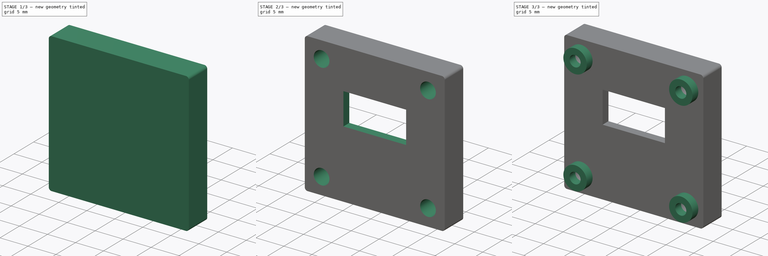
[diagram: build sequence overview — one tinted view per stage of 3, left to right]
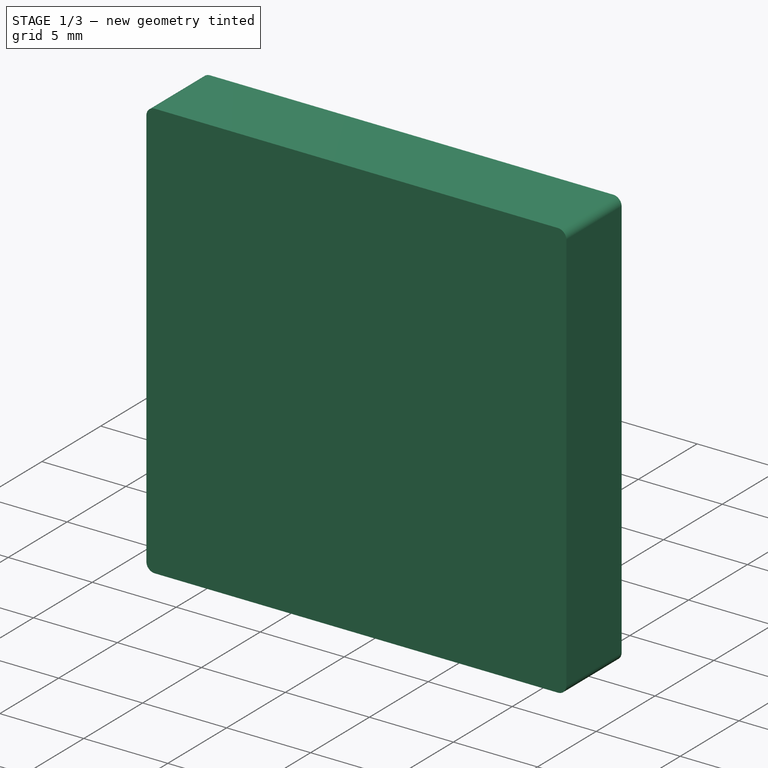
[diagram: stage 1 of 3 — iso view after this stage's code; geometry added in this stage tinted green]
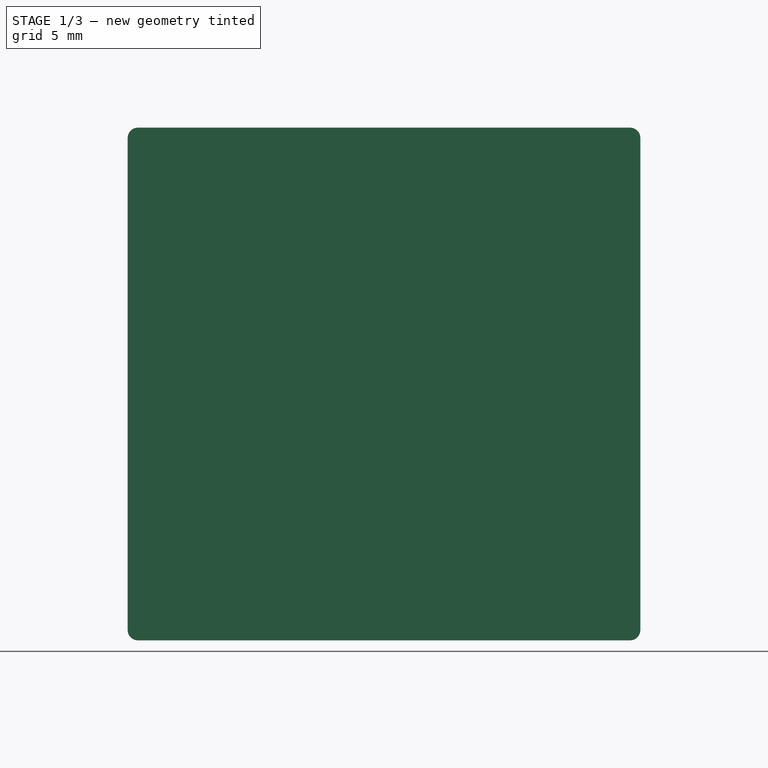
[diagram: stage 1 of 3 — front view after this stage's code; geometry added in this stage tinted green]
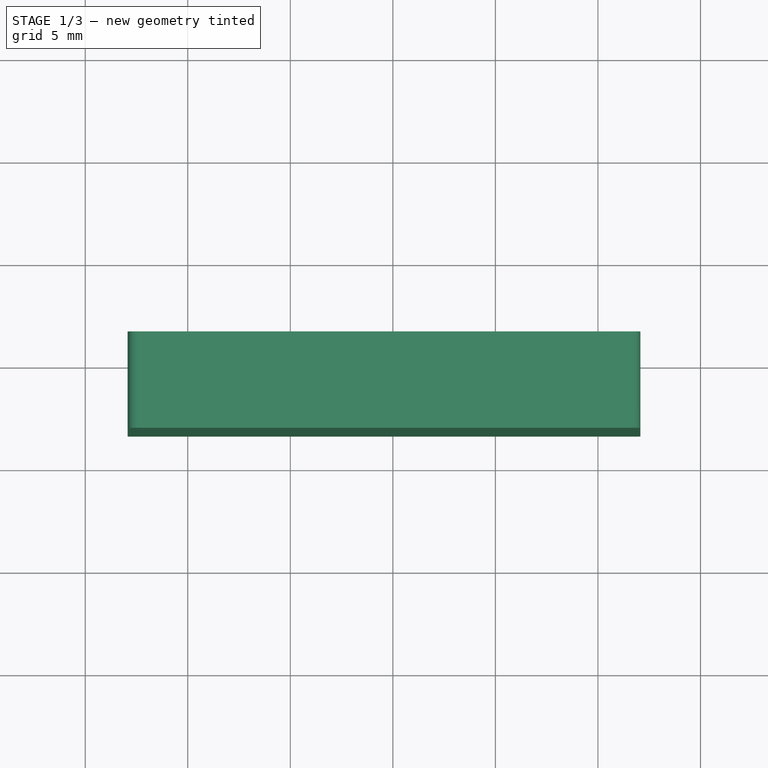
[diagram: stage 1 of 3 — top view after this stage's code; geometry added in this stage tinted green]
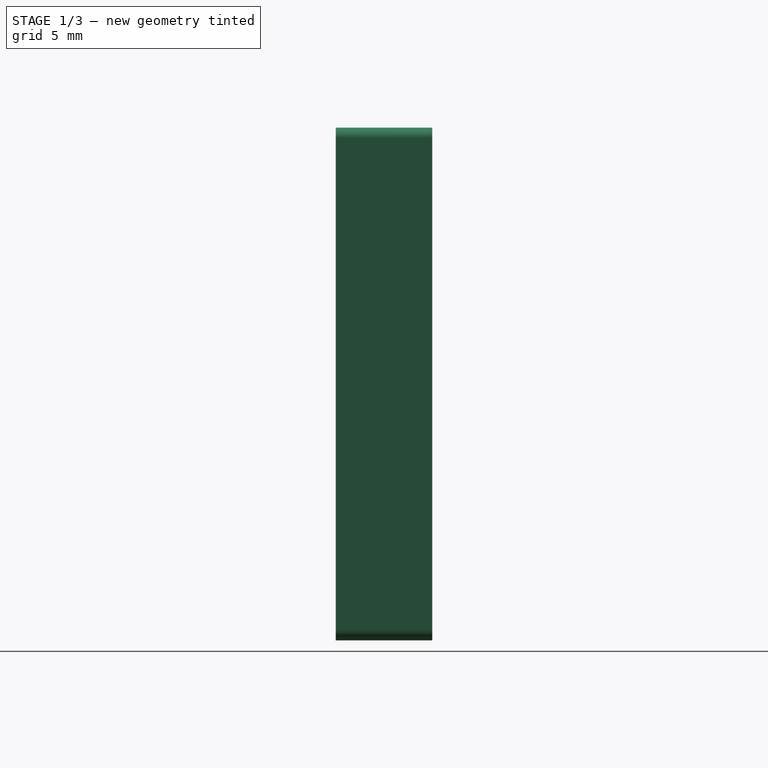
[diagram: stage 1 of 3 — right view after this stage's code; geometry added in this stage tinted green]
FCSTD DOCUMENT  (FreeCAD 1.0R39285 (Git))
Label: module_holder
License: All rights reserved
LicenseURL: https://en.wikipedia.org/wiki/All_rights_reserved
objects: Sketcher::SketchObject×6, PartDesign::Pad×3, PartDesign::Pocket×3, Part::Feature×2, PartDesign::Body×2, App::Part×1, PartDesign::SubShapeBinder×1, PartDesign::FeatureBase×1
note: 37 computed .brp shape members not serialized (recipe doc carries the construction recipe); baked Part::Feature solids carry a one-line shape summary decoded from their .brp

FEATURE [Part::Feature] Part__Feature  label="mod"
  Placement = pos=(-0.431792,-1.84981,21) rot=(0,0,1;0rad)
  shape: bbox 21 x 6.2 x 21 mm, 29 faces (baked)
FEATURE [Part::Feature] Part__Feature001  label="CP-6852 PCB"
  Placement = pos=(-0.431792,3.25019,21) rot=(0,0,1;0rad)
  shape: bbox 17.4 x 6.3 x 17.4 mm, 20 faces (baked)
FEATURE [App::Part] CP_6852_______  label="ZW-101"
  Group = -> [Part__Feature,Part__Feature001]
  Origin = -> Origin
FEATURE [PartDesign::SubShapeBinder] Binder
  BindCopyOnChange = 0
  BindMode = 0
  ClaimChildren = false
  Context = -> Body [Binder.]
  Fuse = false
  MakeFace = true
  OffsetFill = false
  OffsetIntersection = false
  OffsetJoinType = 0
  OffsetOpenResult = false
  PartialLoad = false
  Relative = true
  Support = -> [CP_6852_______]
  _Version = 2
FEATURE [Sketcher::SketchObject] Sketch
  ArcFitTolerance = 1e-06
  AttachmentSupport = -> [Binder]
  ExternalGeometry = -> [Binder]
  FullyConstrained = true
  MakeInternals = false
  MapMode = 5
  Placement = pos=(0,-1.84981,0) rot=(1,0,0;1.5708rad)
  sketch-geometry (13):
    g0: LineSegment StartX=12.0682 StartY=9 StartZ=0 EndX=12.0682 EndY=33 EndZ=0
    g1: LineSegment StartX=11.5682 StartY=33.5 StartZ=0 EndX=-12.4318 EndY=33.5 EndZ=0
    g2: LineSegment StartX=-12.9318 StartY=33 StartZ=0 EndX=-12.9318 EndY=9 EndZ=0
    g3: LineSegment StartX=-12.4318 StartY=8.5 StartZ=0 EndX=11.5682 EndY=8.5 EndZ=0
    g4: GeomPoint [constr] X=-0.431792 Y=21 Z=0
    g5: ArcOfCircle CenterX=-12.4318 CenterY=33 CenterZ=0 NormalX=0 NormalY=0 NormalZ=1 AngleXU=0 Radius=0.5 StartAngle=1.5708 EndAngle=3.14159
    g6: GeomPoint [constr] X=-12.9318 Y=33.5 Z=0
    g7: ArcOfCircle CenterX=-12.4318 CenterY=9 CenterZ=0 NormalX=0 NormalY=0 NormalZ=1 AngleXU=0 Radius=0.5 StartAngle=3.14159 EndAngle=4.71239
    g8: GeomPoint [constr] X=-12.9318 Y=8.5 Z=0
    g9: ArcOfCircle CenterX=11.5682 CenterY=9 CenterZ=0 NormalX=0 NormalY=0 NormalZ=1 AngleXU=0 Radius=0.5 StartAngle=4.71239 EndAngle=6.28319
    g10: GeomPoint [constr] X=12.0682 Y=8.5 Z=0
    g11: ArcOfCircle CenterX=11.5682 CenterY=33 CenterZ=0 NormalX=0 NormalY=0 NormalZ=1 AngleXU=0 Radius=0.5 StartAngle=2.3e-15 EndAngle=1.5708
    g12: GeomPoint [constr] X=12.0682 Y=33.5 Z=0
  constraints (28):
    c: Vertical(g0)
    c: Vertical(g2)
    c: Horizontal(g1)
    c: Horizontal(g3)
    c: Symmetric(g6,g10,g4)
    c: Coincident(g4,g-4)
    c: DistanceX(g6,g12) = 25
    c: PointOnObject(g6,g1)
    c: PointOnObject(g6,g2)
    c: Tangent(g1,g5) = -1.5708
    c: Tangent(g2,g5) = -1.5708
    c: PointOnObject(g8,g2)
    c: PointOnObject(g8,g3)
    c: Tangent(g2,g7) = -1.5708
    c: Tangent(g3,g7) = -1.5708
    c: PointOnObject(g10,g3)
    c: PointOnObject(g10,g0)
    c: Tangent(g3,g9) = -1.5708
    c: Tangent(g0,g9) = -1.5708
    c: PointOnObject(g12,g0)
    c: PointOnObject(g12,g1)
    c: Tangent(g0,g11) = -1.5708
    c: Tangent(g1,g11) = -1.5708
    c: Equal(g11,g9)
    c: Equal(g9,g7)
    c: Equal(g7,g5)
    c: Radius(g5) = 0.5
    c: DistanceY(g3,g1) = 25
FEATURE [PartDesign::Pad] Pad
  Direction = (0,-1,2e-16)
  Length = 1.5
  Length2 = 10
  Profile = -> Sketch
  ReferenceAxis = -> Sketch [N_Axis]
  Suppressed = false
  Type = 0
FEATURE [Sketcher::SketchObject] Sketch001
  ArcFitTolerance = 1e-06
  AttachmentSupport = -> [Pad]
  ExternalGeometry = -> [Binder,Pad]
  FullyConstrained = true
  MakeInternals = false
  MapMode = 5
  Placement = pos=(0,-1.84981,0) rot=(0,0.707107,0.707107;3.14159rad)
  sketch-geometry (19):
    g0: ArcOfCircle CenterX=0.431792 CenterY=11.54 CenterZ=0 NormalX=0 NormalY=0 NormalZ=1 AngleXU=0 Radius=1.04 StartAngle=3.0866 EndAngle=6.33818
    g1: ArcOfCircle CenterX=0.431792 CenterY=21 CenterZ=0 NormalX=0 NormalY=0 NormalZ=1 AngleXU=0 Radius=9.46 StartAngle=4.82238 EndAngle=6.95859
    g2: ArcOfCircle CenterX=7.12102 CenterY=27.6892 CenterZ=0 NormalX=0 NormalY=0 NormalZ=1 AngleXU=0 Radius=1.04 StartAngle=5.44279 EndAngle=8.69438
    g3: ArcOfCircle CenterX=0.431792 CenterY=21 CenterZ=0 NormalX=0 NormalY=0 NormalZ=1 AngleXU=0 Radius=9.46 StartAngle=0.89539 EndAngle=2.2462
    g4: ArcOfCircle CenterX=-6.25744 CenterY=27.6892 CenterZ=0 NormalX=0 NormalY=0 NormalZ=1 AngleXU=0 Radius=1.04 StartAngle=0.730402 EndAngle=3.98199
    g5: ArcOfCircle CenterX=0.431792 CenterY=21 CenterZ=0 NormalX=0 NormalY=0 NormalZ=1 AngleXU=0 Radius=9.46 StartAngle=2.46619 EndAngle=4.6024
    g6: LineSegment StartX=12.9318 StartY=9 StartZ=0 EndX=12.9318 EndY=33 EndZ=0
    g7: LineSegment StartX=12.4318 StartY=33.5 StartZ=0 EndX=-11.5682 EndY=33.5 EndZ=0
    g8: LineSegment StartX=-12.0682 StartY=33 StartZ=0 EndX=-12.0682 EndY=9 EndZ=0
    g9: LineSegment StartX=-11.5682 StartY=8.5 StartZ=0 EndX=12.4318 EndY=8.5 EndZ=0
    g10: GeomPoint [constr] X=0.431792 Y=21 Z=0
    g11: ArcOfCircle CenterX=-11.5682 CenterY=33 CenterZ=0 NormalX=0 NormalY=0 NormalZ=1 AngleXU=0 Radius=0.5 StartAngle=1.5708 EndAngle=3.14159
    g12: GeomPoint [constr] X=-12.0682 Y=33.5 Z=0
    g13: ArcOfCircle CenterX=12.4318 CenterY=33 CenterZ=0 NormalX=0 NormalY=0 NormalZ=1 AngleXU=0 Radius=0.5 StartAngle=-1.954e-13 EndAngle=1.5708
    g14: GeomPoint [constr] X=12.9318 Y=33.5 Z=0
    g15: ArcOfCircle CenterX=12.4318 CenterY=9 CenterZ=0 NormalX=0 NormalY=0 NormalZ=1 AngleXU=0 Radius=0.5 StartAngle=4.71239 EndAngle=6.28319
    g16: GeomPoint [constr] X=12.9318 Y=8.5 Z=0
    g17: ArcOfCircle CenterX=-11.5682 CenterY=9 CenterZ=0 NormalX=0 NormalY=0 NormalZ=1 AngleXU=0 Radius=0.5 StartAngle=3.14159 EndAngle=4.71239
    g18: GeomPoint [constr] X=-12.0682 Y=8.5 Z=0
  constraints (45):
    c: Coincident(g0,g-4)
    c: Coincident(g0,g-5)
    c: Horizontal(g0,g0)
    c: Coincident(g2,g-11)
    c: Coincident(g2,g1)
    c: Coincident(g2,g-11)
    c: Coincident(g3,g1)
    c: Coincident(g3,g-11)
    c: Coincident(g3,g-8)
    c: Coincident(g4,g-7)
    c: Coincident(g4,g-8)
    c: Coincident(g5,g1)
    c: Coincident(g5,g4)
    c: Coincident(g5,g0)
    c: PointOnObject(g1,g-3)
    c: Vertical(g1,g0)
    c: PointOnObject(g1,g-3)
    c: Vertical(g6)
    c: Vertical(g8)
    c: Horizontal(g7)
    c: Horizontal(g9)
    c: Symmetric(g12,g16,g10)
    c: Coincident(g10,g1)
    c: Horizontal(g12,g-12)
    c: Vertical(g-13,g12)
    c: PointOnObject(g12,g7)
    c: PointOnObject(g12,g8)
    c: Tangent(g7,g11) = -1.5708
    c: Tangent(g8,g11) = -1.5708
    c: PointOnObject(g14,g7)
    c: PointOnObject(g14,g6)
    c: Tangent(g7,g13) = -1.5708
    c: Tangent(g6,g13) = -1.5708
    c: PointOnObject(g16,g9)
    c: PointOnObject(g16,g6)
    c: Tangent(g9,g15) = -1.5708
    c: Tangent(g6,g15) = -1.5708
    c: PointOnObject(g18,g9)
    c: PointOnObject(g18,g8)
    c: Tangent(g9,g17) = -1.5708
    c: Tangent(g8,g17) = -1.5708
    c: Equal(g17,g15)
    c: Equal(g15,g13)
    c: Equal(g13,g11)
    c: Radius(g11) = 0.5
FEATURE [PartDesign::Pad] Pad001
  BaseFeature = -> Pad
  Direction = (0,1,-2e-16)
  Length = 10
  Length2 = 10
  Profile = -> Sketch001
  ReferenceAxis = -> Sketch001 [N_Axis]
  Suppressed = false
  Type = 3
  UpToFace = -> Binder [Face22]
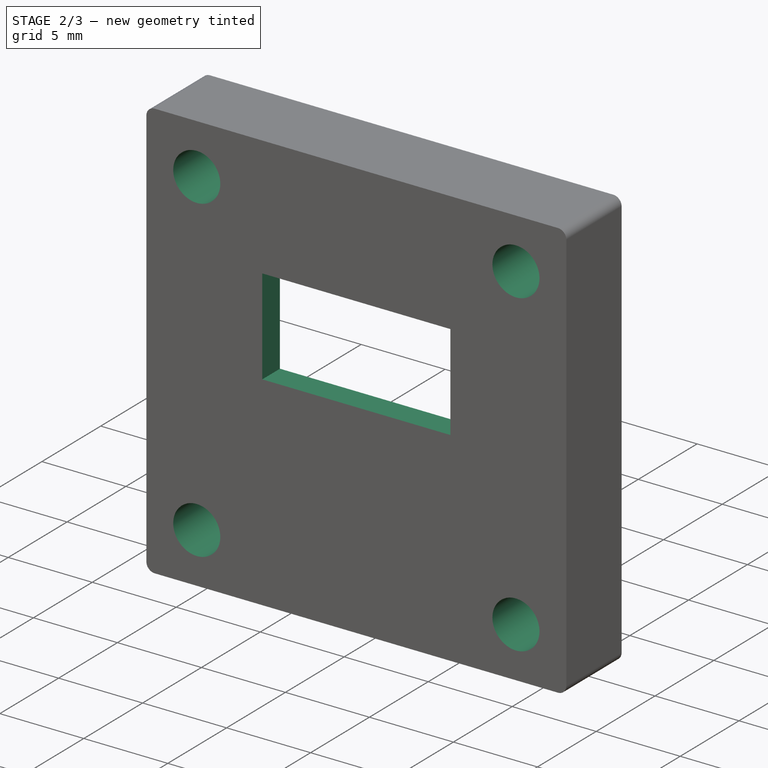
[diagram: stage 2 of 3 — iso view after this stage's code; geometry added in this stage tinted green]
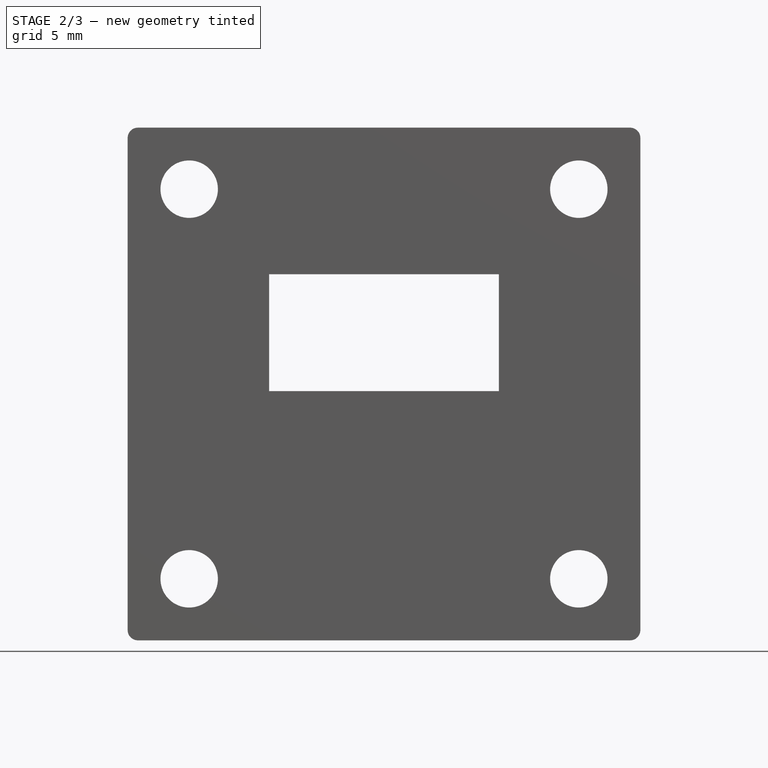
[diagram: stage 2 of 3 — front view after this stage's code; geometry added in this stage tinted green]
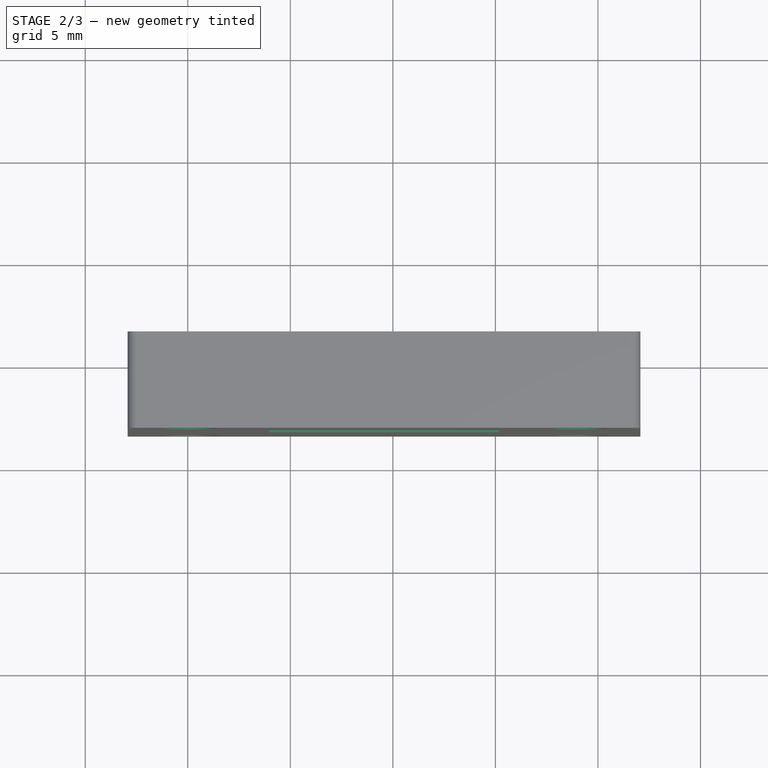
[diagram: stage 2 of 3 — top view after this stage's code; geometry added in this stage tinted green]
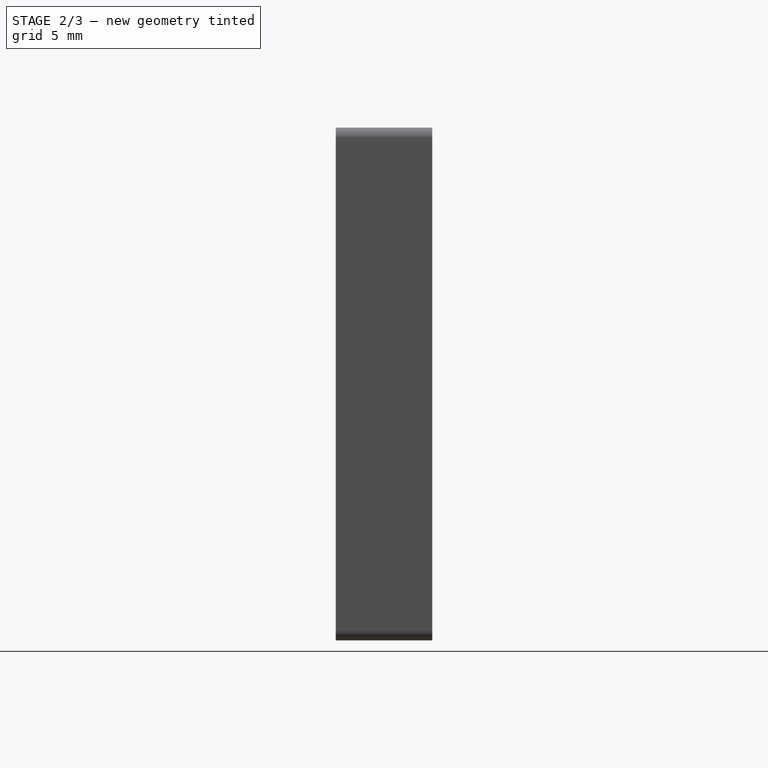
[diagram: stage 2 of 3 — right view after this stage's code; geometry added in this stage tinted green]
FEATURE [Sketcher::SketchObject] Sketch003
  ArcFitTolerance = 1e-06
  AttachmentSupport = -> [Pad001]
  ExternalGeometry = -> [Binder]
  FullyConstrained = true
  MakeInternals = false
  MapMode = 5
  Placement = pos=(0,1.35019,0) rot=(0,0.707107,0.707107;3.14159rad)
  sketch-geometry (4):
    g0: Circle CenterX=9.93179 CenterY=11.5 CenterZ=0 NormalX=0 NormalY=0 NormalZ=1 AngleXU=0 Radius=1.4
    g1: Circle CenterX=-9.06821 CenterY=30.5 CenterZ=0 NormalX=0 NormalY=0 NormalZ=1 AngleXU=0 Radius=1.4
    g2: Circle CenterX=9.93179 CenterY=30.5 CenterZ=0 NormalX=0 NormalY=0 NormalZ=1 AngleXU=0 Radius=1.4
    g3: Circle CenterX=-9.06821 CenterY=11.5 CenterZ=0 NormalX=0 NormalY=0 NormalZ=1 AngleXU=0 Radius=1.4
  constraints (10):
    c: Symmetric(g1,g0,g-7)
    c: Equal(g1,g0)
    c: Radius(g1) = 1.4
    c: DistanceX(g-4,g1) = 3
    c: DistanceY(g1,g-4) = 3
    c: Equal(g3,g2)
    c: Equal(g2,g1)
    c: Vertical(g3,g1)
    c: Horizontal(g3,g0)
    c: Symmetric(g3,g2,g-7)
FEATURE [Sketcher::SketchObject] Sketch004
  ArcFitTolerance = 1e-06
  AttachmentSupport = -> [Pad001]
  ExternalGeometry = -> [Binder]
  FullyConstrained = true
  MakeInternals = false
  MapMode = 5
  Placement = pos=(0,-3.34981,0) rot=(1,0,0;1.5708rad)
  sketch-geometry (6):
    g0: GeomPoint X=-0.431792 Y=23.5 Z=0
    g1: LineSegment StartX=5.16821 StartY=20.65 StartZ=0 EndX=5.16821 EndY=26.35 EndZ=0
    g2: LineSegment StartX=5.16821 StartY=26.35 StartZ=0 EndX=-6.03179 EndY=26.35 EndZ=0
    g3: LineSegment StartX=-6.03179 StartY=26.35 StartZ=0 EndX=-6.03179 EndY=20.65 EndZ=0
    g4: LineSegment StartX=-6.03179 StartY=20.65 StartZ=0 EndX=5.16821 EndY=20.65 EndZ=0
    g5: GeomPoint [constr] X=-0.431792 Y=23.5 Z=0
  constraints (13):
    c: Symmetric(g-5,g-3,g0)
    c: Coincident(g1,g2)
    c: Coincident(g2,g3)
    c: Coincident(g3,g4)
    c: Coincident(g4,g1)
    c: Vertical(g1)
    c: Vertical(g3)
    c: Horizontal(g2)
    c: Horizontal(g4)
    c: Symmetric(g3,g1,g5)
    c: Coincident(g5,g0)
    c: DistanceX(g2,g-4) = 0.6
    c: Horizontal(g-5,g1)
FEATURE [PartDesign::Pocket] Pocket001
  BaseFeature = -> Pad001
  Direction = (0,1,-2e-16)
  Length = 5
  Length2 = 5
  Profile = -> Sketch004
  ReferenceAxis = -> Sketch004 [N_Axis]
  Suppressed = false
  Type = 1
FEATURE [PartDesign::Pocket] Pocket
  BaseFeature = -> Pocket001
  Direction = (0,-1,2e-16)
  Length = 5
  Length2 = 5
  Profile = -> Sketch003
  ReferenceAxis = -> Sketch003 [N_Axis]
  Suppressed = false
  Type = 1
FEATURE [PartDesign::Body] Body  label="Holder"
  AllowCompound = false
  Group = -> [Binder,Sketch,Pad,Sketch001,Pad001,Sketch003,Sketch004,Pocket001,Pocket]
  Origin = -> Origin001
  Tip = -> Pocket
FEATURE [PartDesign::FeatureBase] Clone
  BaseFeature = -> Body
  Suppressed = false
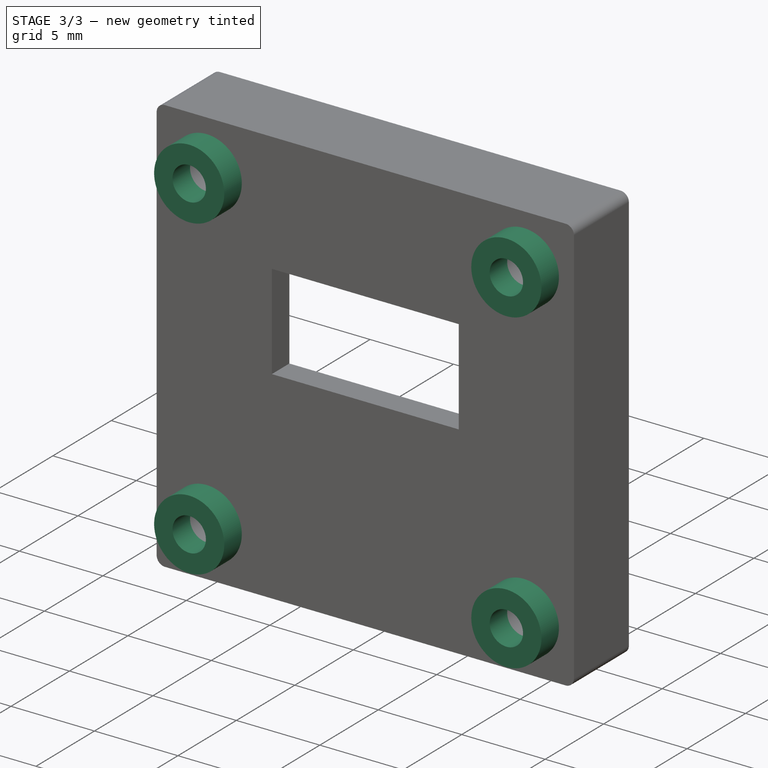
[diagram: stage 3 of 3 — iso view after this stage's code; geometry added in this stage tinted green]
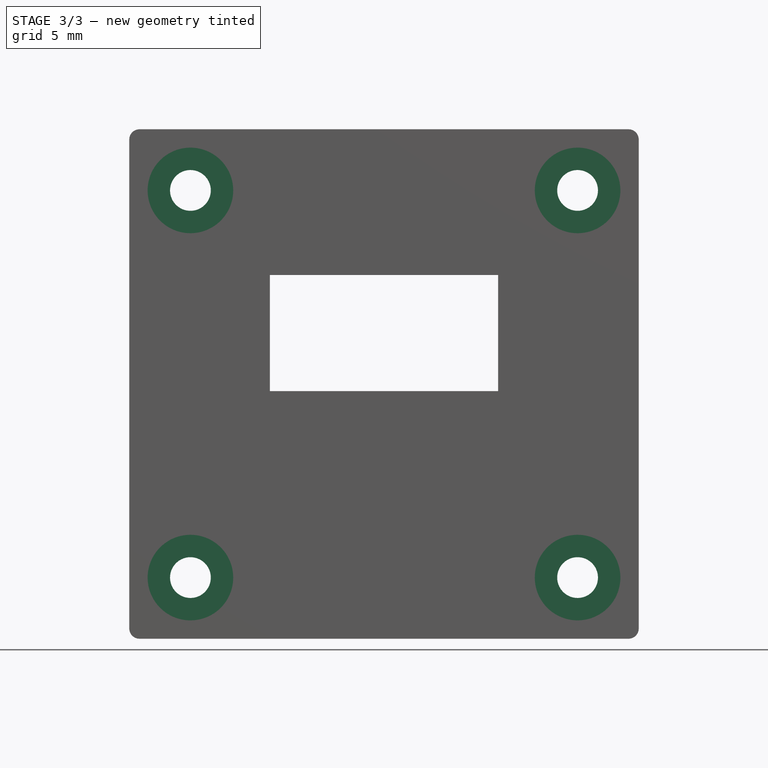
[diagram: stage 3 of 3 — front view after this stage's code; geometry added in this stage tinted green]
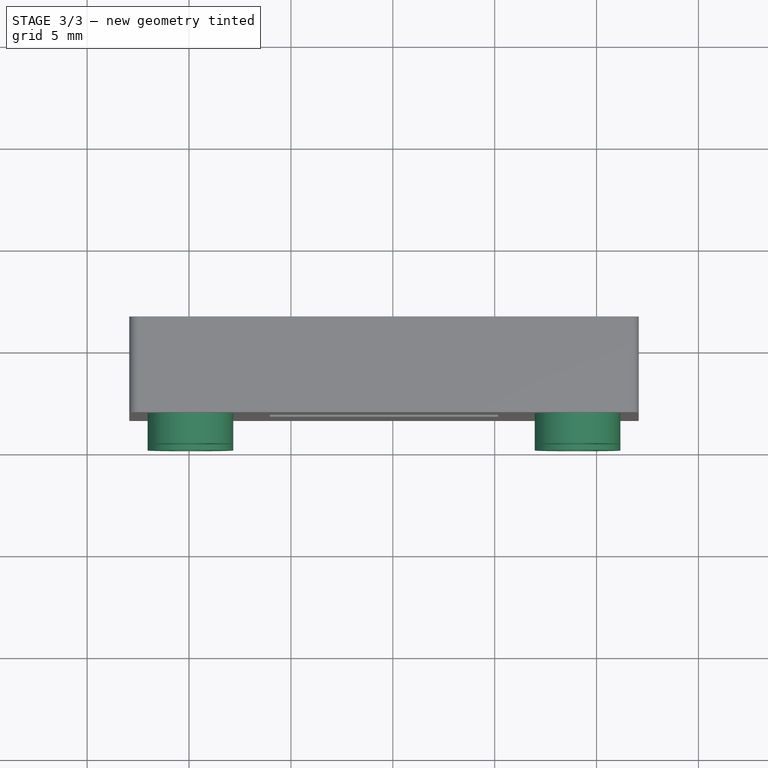
[diagram: stage 3 of 3 — top view after this stage's code; geometry added in this stage tinted green]
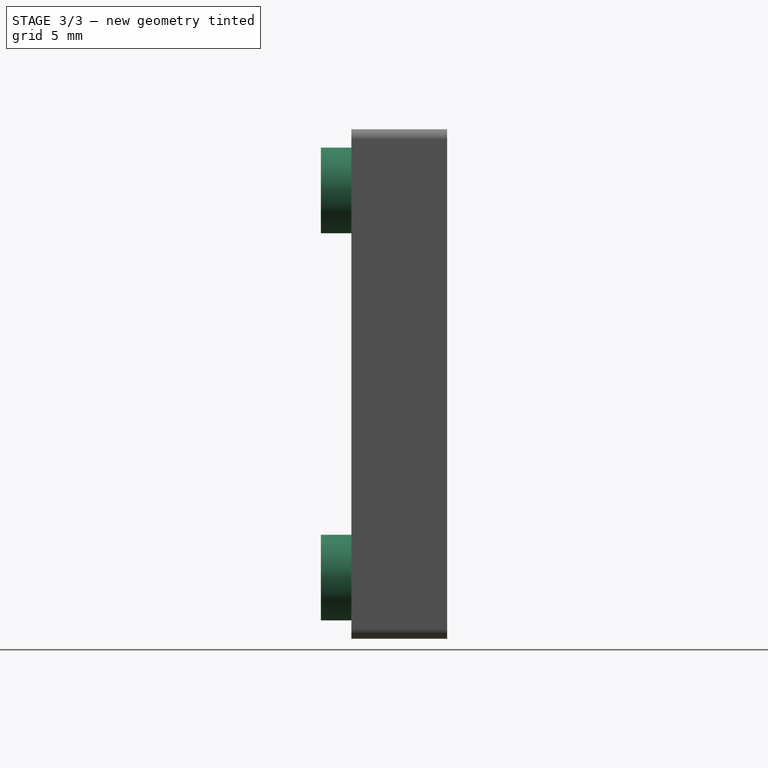
[diagram: stage 3 of 3 — right view after this stage's code; geometry added in this stage tinted green]
FEATURE [Sketcher::SketchObject] Sketch005
  ArcFitTolerance = 1e-06
  AttachmentSupport = -> [Clone]
  ExternalGeometry = -> [Clone]
  FullyConstrained = true
  MakeInternals = false
  MapMode = 5
  Placement = pos=(0,-3.34981,0) rot=(1,0,0;1.5708rad)
  sketch-geometry (4):
    g0: Circle CenterX=-9.93179 CenterY=30.5 CenterZ=0 NormalX=0 NormalY=0 NormalZ=1 AngleXU=0 Radius=2.1
    g1: Circle CenterX=9.06821 CenterY=30.5 CenterZ=0 NormalX=0 NormalY=0 NormalZ=1 AngleXU=0 Radius=2.1
    g2: Circle CenterX=-9.93179 CenterY=11.5 CenterZ=0 NormalX=0 NormalY=0 NormalZ=1 AngleXU=0 Radius=2.1
    g3: Circle CenterX=9.06821 CenterY=11.5 CenterZ=0 NormalX=0 NormalY=0 NormalZ=1 AngleXU=0 Radius=2.1
  constraints (8):
    c: Coincident(g0,g-3)
    c: Coincident(g1,g-4)
    c: Coincident(g2,g-5)
    c: Coincident(g3,g-6)
    c: Equal(g3,g2)
    c: Equal(g2,g0)
    c: Equal(g0,g1)
    c: Radius(g0) = 2.1
FEATURE [PartDesign::Pad] Pad002
  BaseFeature = -> Clone
  Direction = (0,-1,2e-16)
  Length = 1.5
  Length2 = 10
  Profile = -> Sketch005
  ReferenceAxis = -> Sketch005 [N_Axis]
  Suppressed = false
  Type = 0
FEATURE [Sketcher::SketchObject] Sketch006
  ArcFitTolerance = 1e-06
  AttachmentSupport = -> [Pad002]
  ExternalGeometry = -> [Pad002]
  FullyConstrained = true
  MakeInternals = false
  MapMode = 5
  Placement = pos=(0,-4.84981,0) rot=(1,0,0;1.5708rad)
  sketch-geometry (4):
    g0: Circle CenterX=-9.93179 CenterY=30.5 CenterZ=0 NormalX=0 NormalY=0 NormalZ=1 AngleXU=0 Radius=1
    g1: Circle CenterX=9.06821 CenterY=30.5 CenterZ=0 NormalX=0 NormalY=0 NormalZ=1 AngleXU=0 Radius=1
    g2: Circle CenterX=9.06821 CenterY=11.5 CenterZ=0 NormalX=0 NormalY=0 NormalZ=1 AngleXU=0 Radius=1
    g3: Circle CenterX=-9.93179 CenterY=11.5 CenterZ=0 NormalX=0 NormalY=0 NormalZ=1 AngleXU=0 Radius=1
  constraints (8):
    c: Coincident(g0,g-3)
    c: Coincident(g1,g-4)
    c: Coincident(g2,g-5)
    c: Coincident(g3,g-6)
    c: Equal(g3,g2)
    c: Equal(g2,g1)
    c: Equal(g1,g0)
    c: Radius(g0) = 1
FEATURE [PartDesign::Pocket] Pocket002
  BaseFeature = -> Pad002
  Direction = (0,1,-2e-16)
  Length = 5
  Length2 = 5
  Profile = -> Sketch006
  ReferenceAxis = -> Sketch006 [N_Axis]
  Suppressed = false
  Type = 1
FEATURE [PartDesign::Body] Body001  label="HolderWStub"
  AllowCompound = false
  Group = -> [Clone,Sketch005,Pad002,Sketch006,Pocket002]
  Origin = -> Origin002
  Tip = -> Pocket002
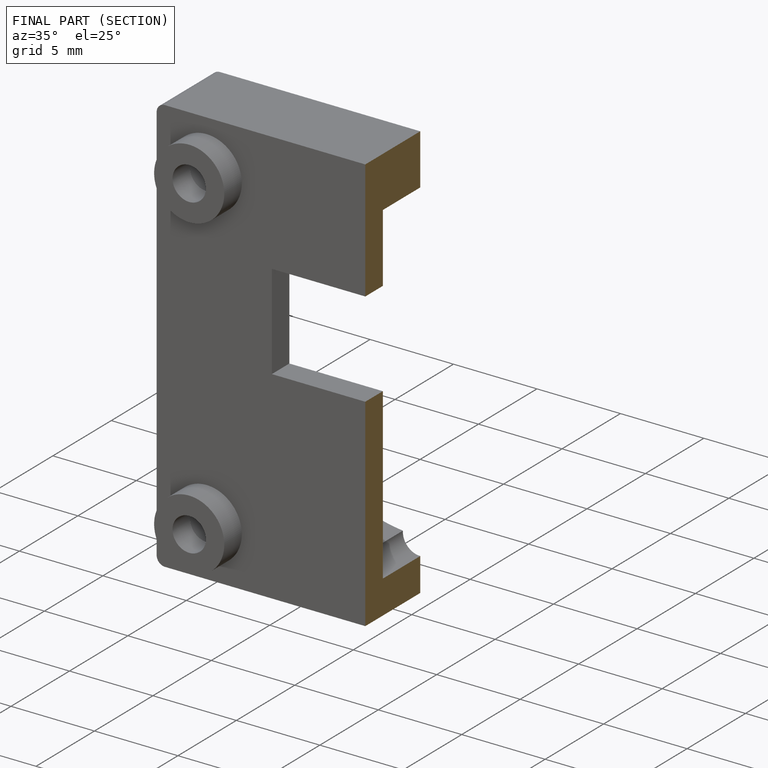
[diagram: finished part — half-section view (interior)]
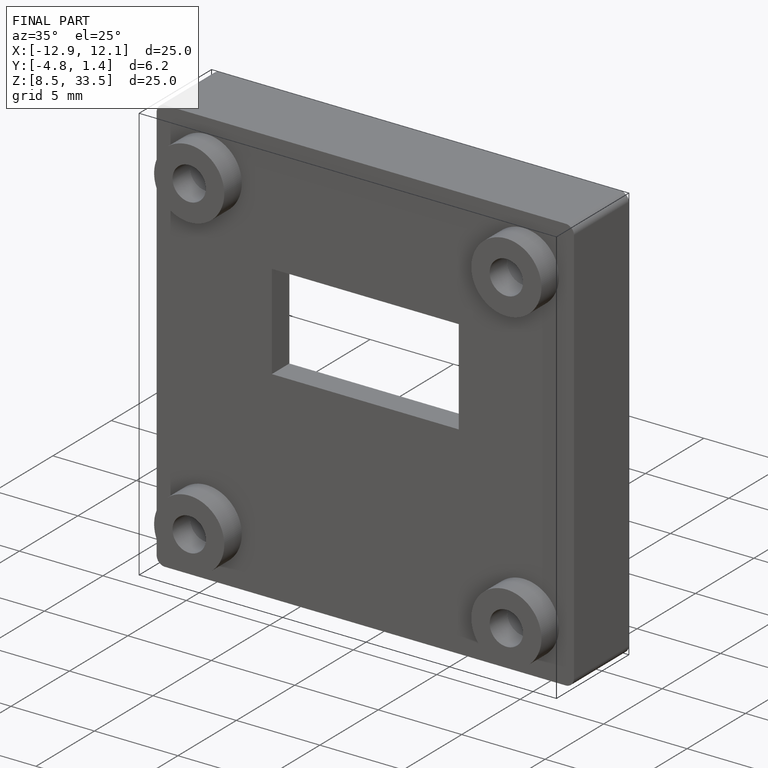
[diagram: finished part — iso view with bounding-box wireframe]
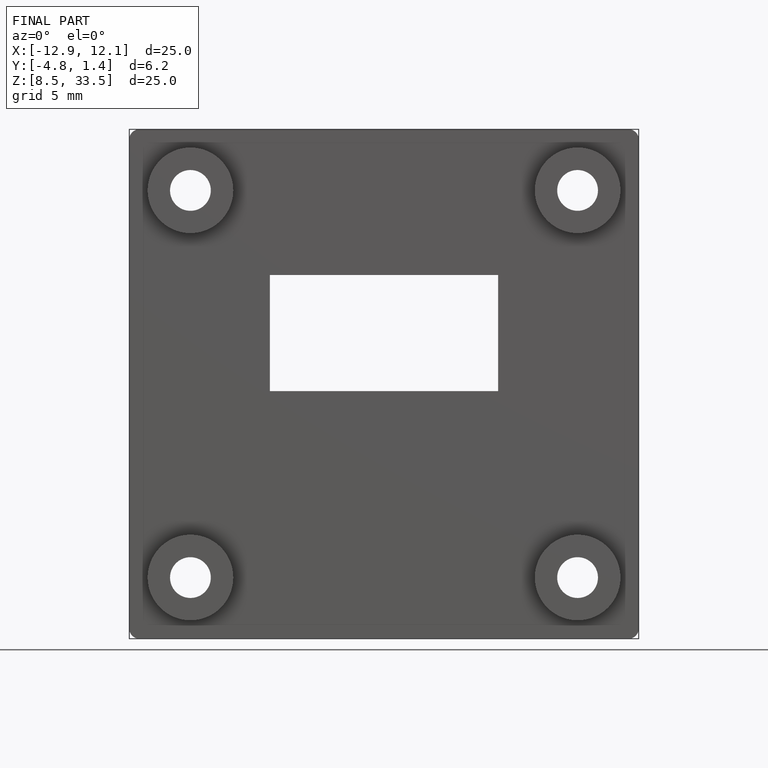
[diagram: finished part — front view with bounding-box wireframe]
